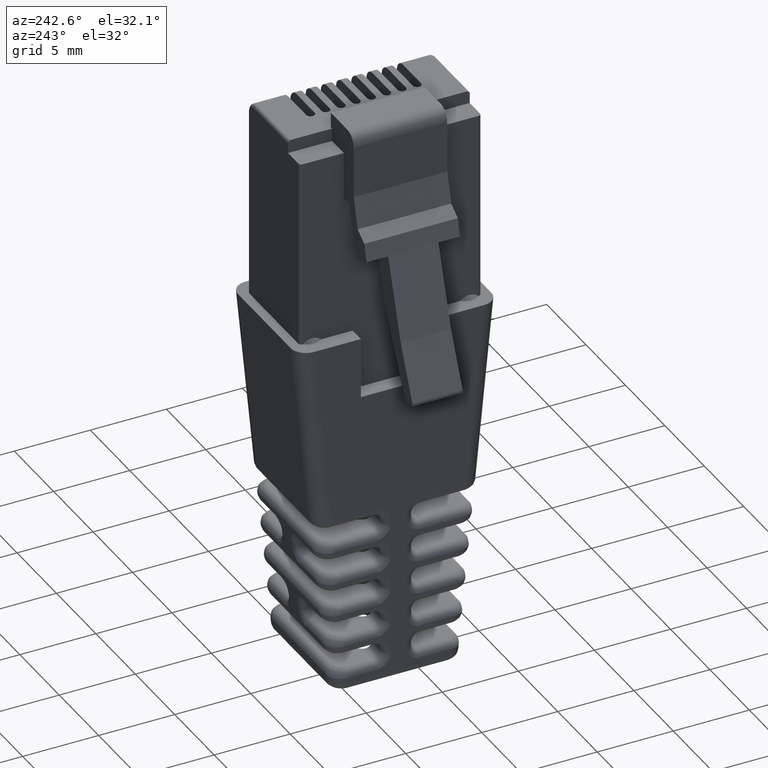
[diagram: clean part render]
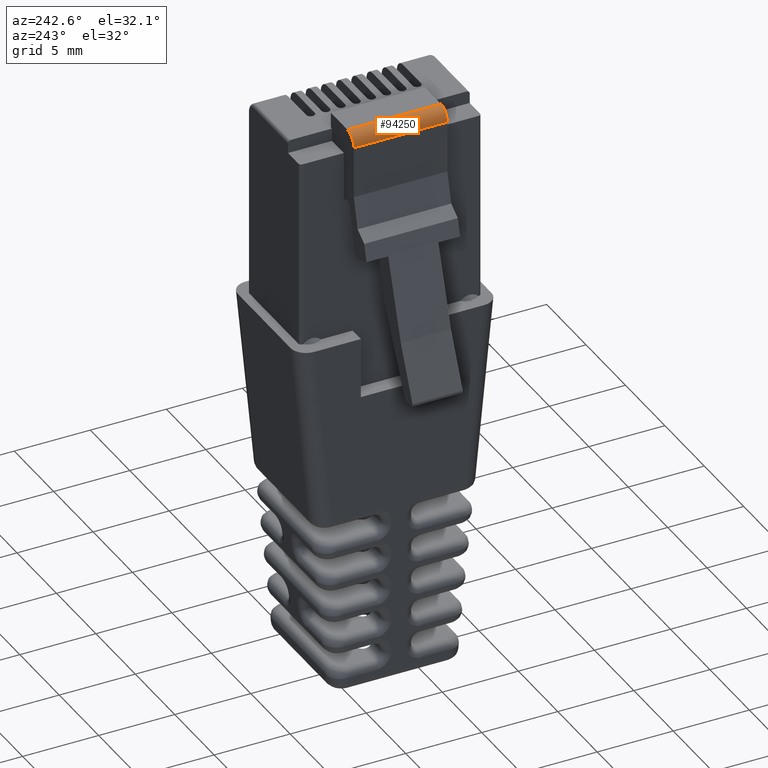
[diagram: same view with one face highlighted and labeled with its STEP entity id]
A machine part, auxiliary view. The second image highlights one B-rep face of the part: STEP entity #94250.
In plain terms, the highlighted cylindrical surface (edge-blend (fillet) strip) has radius 0.8 mm, axis along (0, -1, 0).
Its self-contained STEP definition (entity closure, byte-faithful):
#92770=CARTESIAN_POINT('',(14.5031426136379,9.16886962969768,-13.45));
#92780=VERTEX_POINT('',#92770);
#92860=CARTESIAN_POINT('',(8.35314261363792,9.16886962969768,-13.45));
#92870=VERTEX_POINT('',#92860);
#92900=CARTESIAN_POINT('',(11.4281426136379,9.16886962969768,-13.45));
#92910=DIRECTION('',(1.,-3.08148791101958E-32,-1.66533453693773E-16));
#92920=VECTOR('',#92910,1.);
#92930=LINE('',#92900,#92920);
#92940=EDGE_CURVE('',#92870,#92780,#92930,.T.);
#93180=CARTESIAN_POINT('',(14.5031426136379,8.36886962969768,-14.25));
#93190=VERTEX_POINT('',#93180);
#93220=CARTESIAN_POINT('',(11.4281426136379,8.36886962969768,-14.25));
#93230=DIRECTION('',(1.,-3.08148791101958E-32,-1.66533453693773E-16));
#93240=VECTOR('',#93230,1.);
#93250=LINE('',#93220,#93240);
#93260=CARTESIAN_POINT('',(8.35314261363792,8.36886962969768,-14.25));
#93270=VERTEX_POINT('',#93260);
#93280=EDGE_CURVE('',#93270,#93190,#93250,.T.);
#94020=CARTESIAN_POINT('',(11.4281426136379,8.36886962969768,-13.45));
#94030=DIRECTION('',(1.,-3.08148791101958E-32,-1.66533453693773E-16));
#94040=DIRECTION('',(-3.38963670212154E-32,1.,-3.88578058618805E-16));
#94050=AXIS2_PLACEMENT_3D('',#94020,#94030,#94040);
#94060=CYLINDRICAL_SURFACE('',#94050,0.8);
#94070=CARTESIAN_POINT('',(8.35314261363792,8.36886962969768,-13.45));
#94080=DIRECTION('',(1.,-3.08148791101958E-32,-1.66533453693773E-16));
#94090=DIRECTION('',(-3.38963670212154E-32,1.,-3.88578058618805E-16));
#94100=AXIS2_PLACEMENT_3D('',#94070,#94080,#94090);
#94110=CIRCLE('',#94100,0.8);
#94120=EDGE_CURVE('',#93270,#92870,#94110,.T.);
#94130=ORIENTED_EDGE('',*,*,#94120,.T.);
#94140=ORIENTED_EDGE('',*,*,#93280,.F.);
#94150=CARTESIAN_POINT('',(14.5031426136379,8.36886962969768,-13.45));
#94160=DIRECTION('',(1.,-3.08148791101958E-32,-1.66533453693773E-16));
#94170=DIRECTION('',(-3.38963670212154E-32,1.,-3.88578058618805E-16));
#94180=AXIS2_PLACEMENT_3D('',#94150,#94160,#94170);
#94190=CIRCLE('',#94180,0.8);
#94200=EDGE_CURVE('',#93190,#92780,#94190,.T.);
#94210=ORIENTED_EDGE('',*,*,#94200,.F.);
#94220=ORIENTED_EDGE('',*,*,#92940,.T.);
#94230=EDGE_LOOP('',(#94220,#94210,#94140,#94130));
#94240=FACE_OUTER_BOUND('',#94230,.T.);
#94250=ADVANCED_FACE('',(#94240),#94060,.T.);